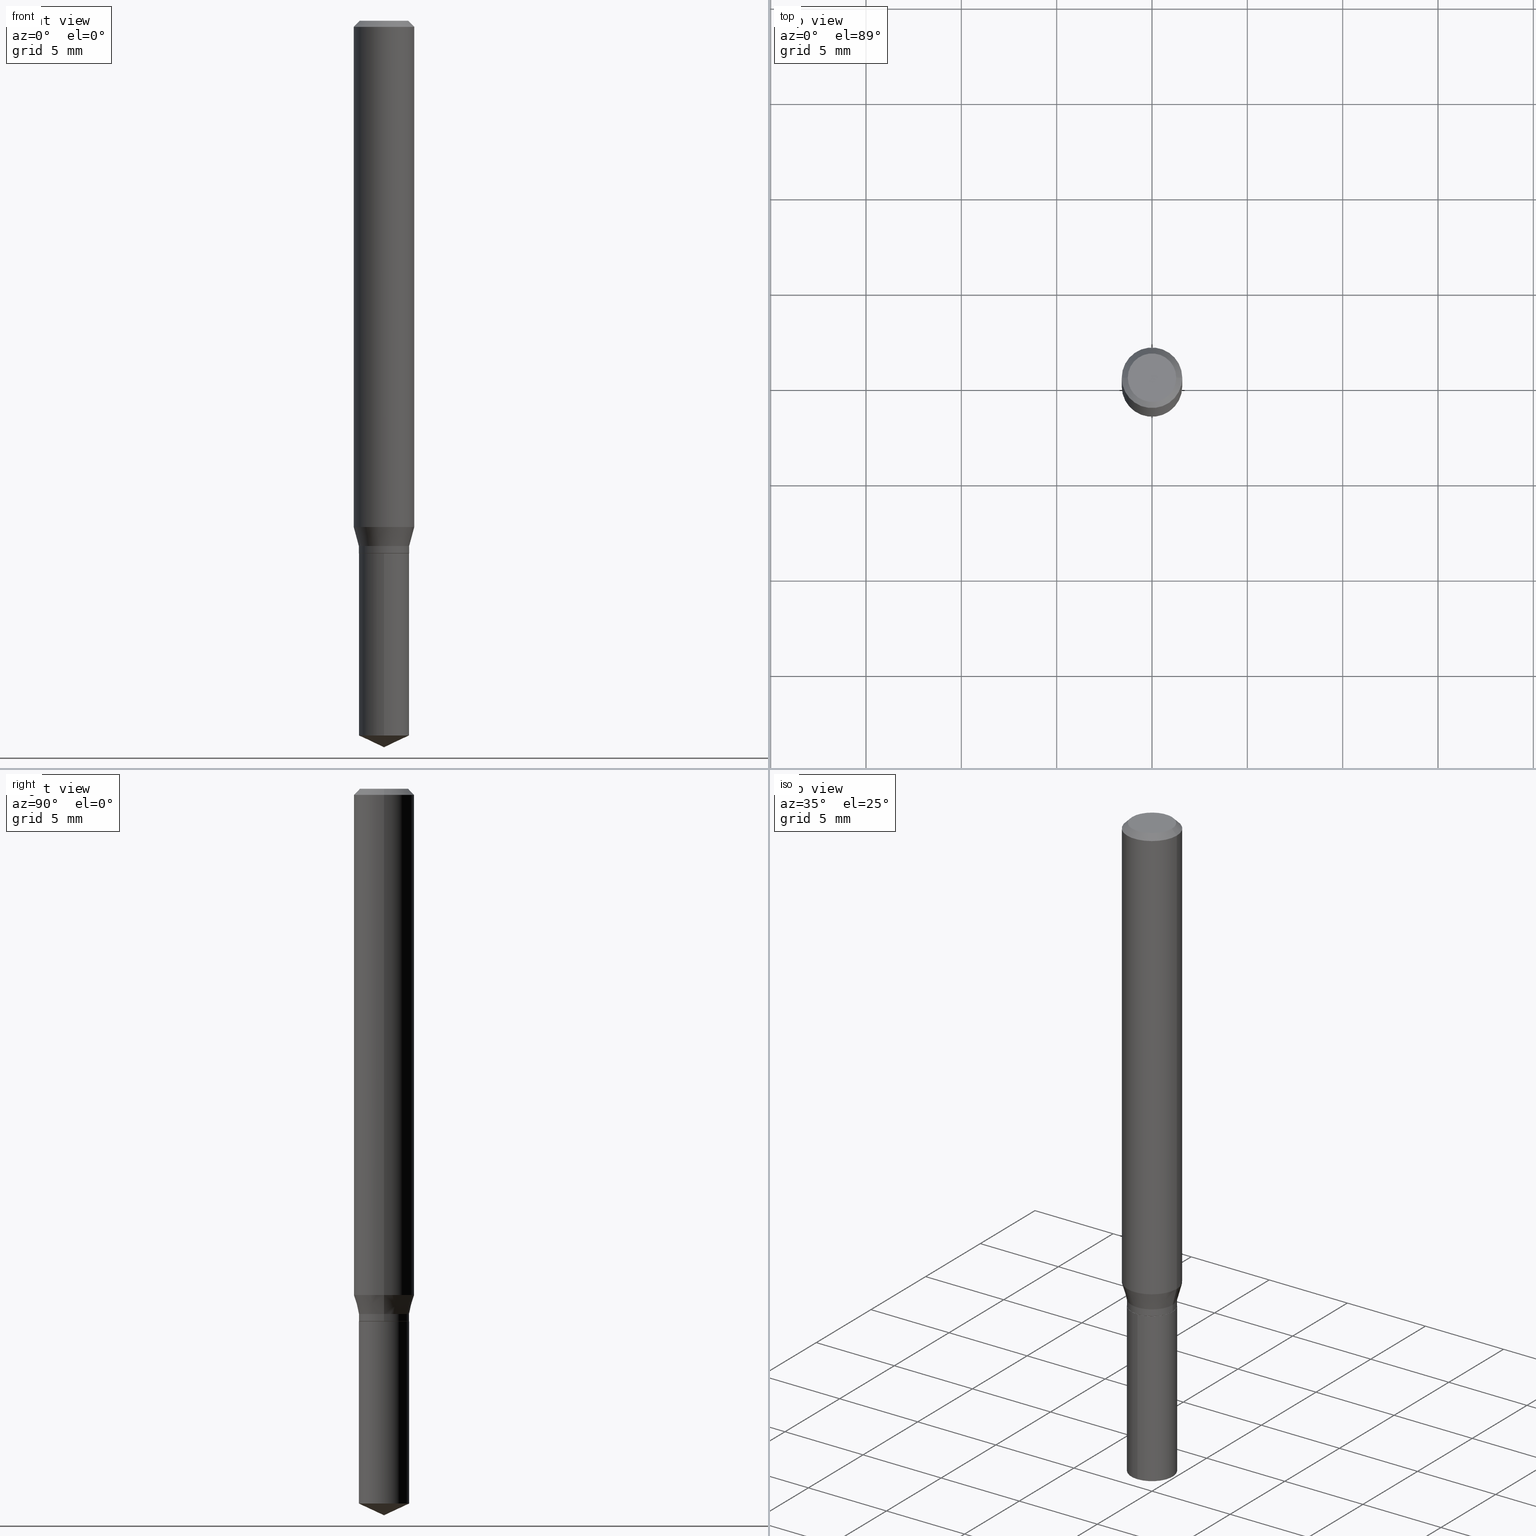
[diagram: canonical four-view strip — front | top / right | iso, engineering-drawing reading convention]
A machine part, canonical four-view strip (front | top / right | iso — engineering-drawing reading convention). The complete STEP part file that produces these views, byte-faithful:
ISO-10303-21;
HEADER;
FILE_DESCRIPTION (( 'STEP AP203' ),
    '1' );
FILE_NAME ('07212.STEP',
    '2024-04-23T20:01:41',
    ( '' ),
    ( '' ),
    'SwSTEP 2.0',
    'SolidWorks 2023',
    '' );
FILE_SCHEMA (( 'CONFIG_CONTROL_DESIGN' ));
ENDSEC;

DATA;
#1 = APPROVAL_STATUS ( 'not_yet_approved' ) ;
#2 = DIRECTION ( 'NONE',  ( 1.000000000000000000, -6.982962677686264344E-15, 0.000000000000000000 ) ) ;
#3 = PERSON_AND_ORGANIZATION ( #219, #182 ) ;
#4 = DIRECTION ( 'NONE',  ( 1.000000000000000000, -6.982962677686269077E-15, 0.000000000000000000 ) ) ;
#5 = FACE_OUTER_BOUND ( 'NONE', #44, .T. ) ;
#6 = DIRECTION ( 'NONE',  ( -2.438088387897960049E-29, 3.491481338843145188E-15, 1.000000000000000000 ) ) ;
#7 = CIRCLE ( 'NONE', #331, 0.06250000000000012490 ) ;
#8 = CIRCLE ( 'NONE', #127, 0.05199999999999999067 ) ;
#9 =( LENGTH_UNIT ( ) NAMED_UNIT ( * ) SI_UNIT ( $, .METRE. ) );
#10 = ADVANCED_FACE ( 'NONE', ( #482 ), #255, .T. ) ;
#11 = VERTEX_POINT ( 'NONE', #259 ) ;
#12 = EDGE_CURVE ( 'NONE', #470, #13, #75, .T. ) ;
#13 = VERTEX_POINT ( 'NONE', #401 ) ;
#14 = VERTEX_POINT ( 'NONE', #444 ) ;
#15 = AXIS2_PLACEMENT_3D ( 'NONE', #301, #413, #374 ) ;
#16 = VERTEX_POINT ( 'NONE', #296 ) ;
#17 = LINE ( 'NONE', #358, #468 ) ;
#18 = ORIENTED_EDGE ( 'NONE', *, *, #153, .T. ) ;
#19 = AXIS2_PLACEMENT_3D ( 'NONE', #71, #151, #110 ) ;
#20 = DIRECTION ( 'NONE',  ( -6.982962677686266711E-15, -1.000000000000000000, 2.626776916984868919E-15 ) ) ;
#21 = CARTESIAN_POINT ( 'NONE',  ( 0.05199999999999999067, -3.631140592396858571E-16, 2.535611923413886108E-30 ) ) ;
#22 = LOCAL_TIME ( 16, 1, 41.00000000000000000, #139 ) ;
#23 = AXIS2_PLACEMENT_3D ( 'NONE', #130, #165, #176 ) ;
#24 = ORIENTED_EDGE ( 'NONE', *, *, #452, .T. ) ;
#25 = PERSON_AND_ORGANIZATION_ROLE ( 'design_owner' ) ;
#26 = LINE ( 'NONE', #245, #370 ) ;
#27 = ORIENTED_EDGE ( 'NONE', *, *, #164, .T. ) ;
#28 = APPROVAL_DATE_TIME ( #404, #116 ) ;
#29 = DIRECTION ( 'NONE',  ( -0.7071067811865451302, 2.468850131082231817E-15, -0.7071067811865499042 ) ) ;
#30 = VECTOR ( 'NONE', #297, 39.37007874015748143 ) ;
#31 = DIRECTION ( 'NONE',  ( 1.000000000000000000, -6.982962677686266711E-15, 0.000000000000000000 ) ) ;
#32 = CONICAL_SURFACE ( 'NONE', #23, 0.06250000000000000000, 0.7853981633974449483 ) ;
#33 = LINE ( 'NONE', #40, #446 ) ;
#34 = FACE_OUTER_BOUND ( 'NONE', #241, .T. ) ;
#35 = CC_DESIGN_PERSON_AND_ORGANIZATION_ASSIGNMENT ( #184, #337, ( #428 ) ) ;
#36 = COORDINATED_UNIVERSAL_TIME_OFFSET ( 5, 0, .BEHIND. ) ;
#37 = CC_DESIGN_APPROVAL ( #360, ( #302 ) ) ;
#38 = DIRECTION ( 'NONE',  ( -2.445399690415121810E-29, 3.491580316559632610E-15, 1.000000000000000000 ) ) ;
#39 = DIRECTION ( 'NONE',  ( 0.7071067811865232589, -2.468850131082003836E-15, 0.7071067811865715536 ) ) ;
#40 = CARTESIAN_POINT ( 'NONE',  ( 3.668099535622682155E-29, -5.237370474839448718E-15, -1.500000000000000222 ) ) ;
#41 = EDGE_CURVE ( 'NONE', #11, #423, #230, .T. ) ;
#42 = CONICAL_SURFACE ( 'NONE', #459, 0.05149999999999999023, 0.7853981633974141952 ) ;
#43 = AXIS2_PLACEMENT_3D ( 'NONE', #371, #229, #78 ) ;
#44 = EDGE_LOOP ( 'NONE', ( #54, #278, #156, #279 ) ) ;
#45 = CARTESIAN_POINT ( 'NONE',  ( 2.690015686803650369E-29, -3.840629472727460101E-15, -1.100000000000000089 ) ) ;
#46 = EDGE_LOOP ( 'NONE', ( #162, #392, #18, #435 ) ) ;
#47 = VERTEX_POINT ( 'NONE', #178 ) ;
#48 = SHAPE_DEFINITION_REPRESENTATION ( #158, #418 ) ;
#49 = ORIENTED_EDGE ( 'NONE', *, *, #282, .T. ) ;
#50 = DIRECTION ( 'NONE',  ( -6.982962677686266711E-15, -1.000000000000000000, 2.626776916984868919E-15 ) ) ;
#51 = ORIENTED_EDGE ( 'NONE', *, *, #372, .T. ) ;
#52 = ADVANCED_FACE ( 'NONE', ( #472 ), #254, .T. ) ;
#53 = CYLINDRICAL_SURFACE ( 'NONE', #389, 0.05199999999999999067 ) ;
#54 = ORIENTED_EDGE ( 'NONE', *, *, #271, .T. ) ;
#55 = CARTESIAN_POINT ( 'NONE',  ( 0.04999999999999999584, -4.077247707424184705E-16, -1.592040838888913461E-18 ) ) ;
#56 = DIRECTION ( 'NONE',  ( -6.982962677686266711E-15, -1.000000000000000000, 2.626776916984868919E-15 ) ) ;
#57 = VECTOR ( 'NONE', #325, 39.37007874015748143 ) ;
#58 = EDGE_CURVE ( 'NONE', #423, #11, #262, .T. ) ;
#59 = DIRECTION ( 'NONE',  ( -2.445399690415121810E-29, 3.491580316559632610E-15, 1.000000000000000000 ) ) ;
#60 = VERTEX_POINT ( 'NONE', #286 ) ;
#61 = DIRECTION ( 'NONE',  ( -2.445468806185136597E-29, 3.491481338843145583E-15, 1.000000000000000000 ) ) ;
#62 = CARTESIAN_POINT ( 'NONE',  ( -9.260740279983036507E-28, 1.322265303911854087E-13, 37.87007874015748143 ) ) ;
#63 = CALENDAR_DATE ( 2024, 23, 4 ) ;
#64 = CIRCLE ( 'NONE', #318, 0.04999999999999999584 ) ;
#65 = LINE ( 'NONE', #220, #242 ) ;
#66 = VERTEX_POINT ( 'NONE', #181 ) ;
#67 = AXIS2_PLACEMENT_3D ( 'NONE', #306, #113, #77 ) ;
#68 = CARTESIAN_POINT ( 'NONE',  ( -3.631140592396589372E-16, -0.05200000000000383482, -1.099999999999999867 ) ) ;
#69 = EDGE_CURVE ( 'NONE', #289, #423, #129, .T. ) ;
#70 = DATE_AND_TIME ( #73, #192 ) ;
#71 = CARTESIAN_POINT ( 'NONE',  ( 3.608879515619396949E-29, -5.152597766036214313E-15, -1.475752001775940458 ) ) ;
#72 = DIRECTION ( 'NONE',  ( 1.000000000000000000, -6.982962677686269077E-15, 0.000000000000000000 ) ) ;
#73 = CALENDAR_DATE ( 2024, 23, 4 ) ;
#74 = EDGE_CURVE ( 'NONE', #16, #13, #359, .T. ) ;
#75 = CIRCLE ( 'NONE', #361, 0.05199999999999999067 ) ;
#76 = EDGE_CURVE ( 'NONE', #293, #47, #281, .T. ) ;
#77 = DIRECTION ( 'NONE',  ( -1.000000000000000000, 6.982962677686265922E-15, -4.876176775795935793E-29 ) ) ;
#78 = DIRECTION ( 'NONE',  ( 1.000000000000000000, -6.982962677686269077E-15, 0.000000000000000000 ) ) ;
#79 = COORDINATED_UNIVERSAL_TIME_OFFSET ( 5, 0, .BEHIND. ) ;
#80 = ORIENTED_EDGE ( 'NONE', *, *, #356, .T. ) ;
#81 = PRODUCT_RELATED_PRODUCT_CATEGORY ( 'detail', '', ( #247 ) ) ;
#82 = ORIENTED_EDGE ( 'NONE', *, *, #74, .T. ) ;
#83 = ORIENTED_EDGE ( 'NONE', *, *, #69, .F. ) ;
#84 = EDGE_LOOP ( 'NONE', ( #200, #421 ) ) ;
#85 = EDGE_CURVE ( 'NONE', #166, #47, #142, .T. ) ;
#86 = DIRECTION ( 'NONE',  ( 1.000000000000000000, -6.982962677686268288E-15, 0.000000000000000000 ) ) ;
#87 = LOCAL_TIME ( 16, 1, 41.00000000000000000, #36 ) ;
#88 = ORIENTED_EDGE ( 'NONE', *, *, #287, .T. ) ;
#89 = CONICAL_SURFACE ( 'NONE', #354, 0.05149999999999999023, 0.7853981633974141952 ) ;
#90 = CARTESIAN_POINT ( 'NONE',  ( 3.893286209682126177E-47, -5.558580879666067980E-33, -1.592040838891559689E-18 ) ) ;
#91 = CARTESIAN_POINT ( 'NONE',  ( 3.056836007731442729E-31, -4.364351673553962300E-17, -0.01250000000000008916 ) ) ;
#92 = DIRECTION ( 'NONE',  ( 1.000000000000000000, -6.982962677686265922E-15, 4.875957971899673662E-29 ) ) ;
#93 = ORIENTED_EDGE ( 'NONE', *, *, #94, .T. ) ;
#94 = EDGE_CURVE ( 'NONE', #16, #14, #429, .T. ) ;
#95 = APPLICATION_CONTEXT ( 'configuration controlled 3d designs of mechanical parts and assemblies' ) ;
#96 = DIRECTION ( 'NONE',  ( 0.000000000000000000, 0.000000000000000000, 1.000000000000000000 ) ) ;
#97 = CARTESIAN_POINT ( 'NONE',  ( 2.690015686803650369E-29, -3.840629472727460101E-15, -1.100000000000000089 ) ) ;
#98 = EDGE_LOOP ( 'NONE', ( #123, #238 ) ) ;
#99 = CC_DESIGN_SECURITY_CLASSIFICATION ( #302, ( #428 ) ) ;
#100 = CONICAL_SURFACE ( 'NONE', #194, 84.42940631927464779, 1.134464013796317339 ) ;
#101 = DIRECTION ( 'NONE',  ( 1.000000000000000000, -6.982962677686268288E-15, 0.000000000000000000 ) ) ;
#102 = ORIENTED_EDGE ( 'NONE', *, *, #74, .F. ) ;
#103 = DIRECTION ( 'NONE',  ( 1.000000000000000000, -6.982962677686268288E-15, 0.000000000000000000 ) ) ;
#104 = ORIENTED_EDGE ( 'NONE', *, *, #486, .T. ) ;
#105 = CIRCLE ( 'NONE', #208, 0.05149999999999999023 ) ;
#106 = ADVANCED_FACE ( 'NONE', ( #34 ), #292, .T. ) ;
#107 = CARTESIAN_POINT ( 'NONE',  ( 0.05149999999999999023, -4.200252050628303247E-15, -1.100000000000000089 ) ) ;
#108 = AXIS2_PLACEMENT_3D ( 'NONE', #268, #6, #447 ) ;
#109 = CYLINDRICAL_SURFACE ( 'NONE', #277, 0.06250000000000006939 ) ;
#110 = DIRECTION ( 'NONE',  ( -6.982962677686266711E-15, -1.000000000000000000, 5.253553833969737838E-15 ) ) ;
#111 = APPROVAL_ROLE ( '' ) ;
#112 = DIRECTION ( 'NONE',  ( -2.445468806185136597E-29, 3.491481338843145583E-15, 1.000000000000000000 ) ) ;
#113 = DIRECTION ( 'NONE',  ( 2.438088387897960049E-29, -3.491481338843145188E-15, -1.000000000000000000 ) ) ;
#114 = VECTOR ( 'NONE', #59, 39.37007874015748143 ) ;
#115 = DIRECTION ( 'NONE',  ( -2.445468806185136597E-29, 3.491481338843145583E-15, 1.000000000000000000 ) ) ;
#116 = APPROVAL ( #1, 'UNSPECIFIED' ) ;
#117 = ORIENTED_EDGE ( 'NONE', *, *, #338, .F. ) ;
#118 = ORIENTED_EDGE ( 'NONE', *, *, #58, .T. ) ;
#119 = APPROVAL_PERSON_ORGANIZATION ( #223, #414, #111 ) ;
#120 = EDGE_LOOP ( 'NONE', ( #420, #88 ) ) ;
#121 = ADVANCED_FACE ( 'NONE', ( #190 ), #450, .T. ) ;
#122 = UNCERTAINTY_MEASURE_WITH_UNIT (LENGTH_MEASURE( 1.000000000000000082E-05 ), #243, 'distance_accuracy_value', 'NONE');
#123 = ORIENTED_EDGE ( 'NONE', *, *, #271, .F. ) ;
#124 = ORIENTED_EDGE ( 'NONE', *, *, #76, .T. ) ;
#125 = CARTESIAN_POINT ( 'NONE',  ( -0.06250000000000012490, -3.205254103613909286E-15, -1.045213466520526380 ) ) ;
#126 = DIRECTION ( 'NONE',  ( 1.000000000000000000, -6.982962677686266711E-15, 0.000000000000000000 ) ) ;
#127 = AXIS2_PLACEMENT_3D ( 'NONE', #391, #248, #50 ) ;
#128 = CARTESIAN_POINT ( 'NONE',  ( 3.056836007731442729E-31, -4.364351673553962300E-17, -0.01250000000000008916 ) ) ;
#129 = LINE ( 'NONE', #170, #275 ) ;
#130 = CARTESIAN_POINT ( 'NONE',  ( 3.056836007731442729E-31, -4.364351673553962300E-17, -0.01250000000000008916 ) ) ;
#131 = DIRECTION ( 'NONE',  ( -6.982962677686266711E-15, -1.000000000000000000, 5.253553833969737838E-15 ) ) ;
#132 =( NAMED_UNIT ( * ) PLANE_ANGLE_UNIT ( ) SI_UNIT ( $, .RADIAN. ) );
#133 = DIRECTION ( 'NONE',  ( -2.445468806185136597E-29, 3.491481338843145583E-15, 1.000000000000000000 ) ) ;
#134 = EDGE_LOOP ( 'NONE', ( #93, #24, #357, #102 ) ) ;
#135 = AXIS2_PLACEMENT_3D ( 'NONE', #431, #362, #20 ) ;
#136 = PERSON_AND_ORGANIZATION_ROLE ( 'creator' ) ;
#137 = DIRECTION ( 'NONE',  ( 0.7071067811865451302, -7.319954787623248157E-15, -0.7071067811865499042 ) ) ;
#138 = DIRECTION ( 'NONE',  ( -2.445468806185136597E-29, 3.491481338843145583E-15, 1.000000000000000000 ) ) ;
#139 = COORDINATED_UNIVERSAL_TIME_OFFSET ( 5, 0, .BEHIND. ) ;
#140 = ADVANCED_FACE ( 'NONE', ( #266 ), #299, .F. ) ;
#141 = DIRECTION ( 'NONE',  ( 6.982962677686265922E-15, 1.000000000000000000, -3.491580316559632610E-15 ) ) ;
#142 = LINE ( 'NONE', #451, #474 ) ;
#143 = PERSON_AND_ORGANIZATION_ROLE ( 'creator' ) ;
#144 = DIRECTION ( 'NONE',  ( -2.445468806185136597E-29, 3.491481338843145583E-15, 1.000000000000000000 ) ) ;
#145 = DIRECTION ( 'NONE',  ( 6.439704144417032720E-15, 0.9063077870366527122, 0.4226182617406934461 ) ) ;
#146 = DATE_AND_TIME ( #295, #87 ) ;
#147 = CIRCLE ( 'NONE', #313, 0.05199999999999999067 ) ;
#148 = DIRECTION ( 'NONE',  ( 1.000000000000000000, -6.982962677686264344E-15, 0.000000000000000000 ) ) ;
#149 = VECTOR ( 'NONE', #38, 39.37007874015748143 ) ;
#150 = PERSON_AND_ORGANIZATION ( #219, #182 ) ;
#151 = DIRECTION ( 'NONE',  ( -2.445399690415121530E-29, 3.491580316559632610E-15, 1.000000000000000000 ) ) ;
#152 = DIRECTION ( 'NONE',  ( 2.445399690415121250E-29, -3.491580316559632610E-15, -1.000000000000000000 ) ) ;
#153 = EDGE_CURVE ( 'NONE', #66, #16, #227, .T. ) ;
#154 = AXIS2_PLACEMENT_3D ( 'NONE', #90, #471, #92 ) ;
#155 = ORIENTED_EDGE ( 'NONE', *, *, #69, .T. ) ;
#156 = ORIENTED_EDGE ( 'NONE', *, *, #94, .F. ) ;
#157 = ADVANCED_FACE ( 'NONE', ( #195 ), #460, .F. ) ;
#158 = PRODUCT_DEFINITION_SHAPE ( 'NONE', 'NONE',  #168 ) ;
#159 = ORIENTED_EDGE ( 'NONE', *, *, #395, .T. ) ;
#160 = AXIS2_PLACEMENT_3D ( 'NONE', #264, #377, #72 ) ;
#161 = AXIS2_PLACEMENT_3D ( 'NONE', #484, #133, #480 ) ;
#162 = ORIENTED_EDGE ( 'NONE', *, *, #441, .F. ) ;
#163 = EDGE_LOOP ( 'NONE', ( #284, #315, #310, #469 ) ) ;
#164 = EDGE_CURVE ( 'NONE', #13, #470, #147, .T. ) ;
#165 = DIRECTION ( 'NONE',  ( 2.445468806185136597E-29, -3.491481338843145583E-15, -1.000000000000000000 ) ) ;
#166 = VERTEX_POINT ( 'NONE', #270 ) ;
#167 = AXIS2_PLACEMENT_3D ( 'NONE', #231, #112, #378 ) ;
#168 = PRODUCT_DEFINITION ( 'UNKNOWN', '', #428, #396 ) ;
#169 = DIRECTION ( 'NONE',  ( -6.982962677686267499E-15, -1.000000000000000000, 3.520397390770440854E-15 ) ) ;
#170 = CARTESIAN_POINT ( 'NONE',  ( -0.06250000000000006939, 4.440892098500631092E-16, -3.074334431409319267E-30 ) ) ;
#171 = VECTOR ( 'NONE', #173, 39.37007874015748143 ) ;
#172 = AXIS2_PLACEMENT_3D ( 'NONE', #128, #250, #253 ) ;
#173 = DIRECTION ( 'NONE',  ( -0.2588190451025215721, 5.211531920934551831E-15, 0.9659258262890679791 ) ) ;
#174 = ORIENTED_EDGE ( 'NONE', *, *, #12, .T. ) ;
#175 = CALENDAR_DATE ( 2024, 23, 4 ) ;
#176 = DIRECTION ( 'NONE',  ( -1.000000000000000000, 6.982962677686266711E-15, 0.000000000000000000 ) ) ;
#177 = MANIFOLD_SOLID_BREP ( 'Body-Move/Copy2[1]', #323 ) ;
#178 = CARTESIAN_POINT ( 'NONE',  ( 3.694822225952880222E-16, 0.05199999999999482120, -1.475752001775940681 ) ) ;
#179 = CIRCLE ( 'NONE', #458, 0.06250000000000012490 ) ;
#180 = DATE_TIME_ROLE ( 'creation_date' ) ;
#181 = CARTESIAN_POINT ( 'NONE',  ( 0.05149999999999999023, -4.200252050628303247E-15, -1.100000000000000089 ) ) ;
#182 = ORGANIZATION ( 'UNSPECIFIED', 'UNSPECIFIED', '' ) ;
#183 = AXIS2_PLACEMENT_3D ( 'NONE', #213, #61, #101 ) ;
#184 = PERSON_AND_ORGANIZATION ( #219, #182 ) ;
#185 = LINE ( 'NONE', #415, #30 ) ;
#186 = MANIFOLD_SOLID_BREP ( 'Body-Move/Copy2[2]', #483 ) ;
#187 = APPROVAL_STATUS ( 'not_yet_approved' ) ;
#188 = ADVANCED_FACE ( 'NONE', ( #419 ), #89, .T. ) ;
#189 = CARTESIAN_POINT ( 'NONE',  ( 0.06250000000000012490, -4.085778480819365543E-15, -1.045213466520526380 ) ) ;
#190 = FACE_OUTER_BOUND ( 'NONE', #203, .T. ) ;
#191 = CARTESIAN_POINT ( 'NONE',  ( 2.556036928180580217E-29, -3.649343313463973085E-15, -1.045213466520526380 ) ) ;
#192 = LOCAL_TIME ( 16, 1, 41.00000000000000000, #193 ) ;
#193 = COORDINATED_UNIVERSAL_TIME_OFFSET ( 5, 0, .BEHIND. ) ;
#194 = AXIS2_PLACEMENT_3D ( 'NONE', #436, #324, #169 ) ;
#195 = FACE_OUTER_BOUND ( 'NONE', #120, .T. ) ;
#196 = LINE ( 'NONE', #228, #149 ) ;
#197 = CARTESIAN_POINT ( 'NONE',  ( 2.651866373427162025E-29, -3.786162363841507612E-15, -1.084400000000000031 ) ) ;
#198 = EDGE_CURVE ( 'NONE', #355, #479, #400, .T. ) ;
#199 = ORIENTED_EDGE ( 'NONE', *, *, #76, .F. ) ;
#200 = ORIENTED_EDGE ( 'NONE', *, *, #290, .T. ) ;
#201 = CC_DESIGN_PERSON_AND_ORGANIZATION_ASSIGNMENT ( #212, #25, ( #247 ) ) ;
#202 = EDGE_LOOP ( 'NONE', ( #328, #433, #82, #221 ) ) ;
#203 = EDGE_LOOP ( 'NONE', ( #27, #236, #466, #314 ) ) ;
#204 = ORIENTED_EDGE ( 'NONE', *, *, #41, .F. ) ;
#205 = ADVANCED_FACE ( 'NONE', ( #434 ), #100, .T. ) ;
#206 = CARTESIAN_POINT ( 'NONE',  ( -3.631140592396496188E-16, -0.05200000000000513933, -1.475752001775940014 ) ) ;
#207 = DIRECTION ( 'NONE',  ( -2.445468806185136877E-29, 3.491481338843145188E-15, 1.000000000000000000 ) ) ;
#208 = AXIS2_PLACEMENT_3D ( 'NONE', #45, #233, #348 ) ;
#209 = FACE_OUTER_BOUND ( 'NONE', #84, .T. ) ;
#210 = DIRECTION ( 'NONE',  ( -2.445468806185136597E-29, 3.491481338843145583E-15, 1.000000000000000000 ) ) ;
#211 = AXIS2_PLACEMENT_3D ( 'NONE', #91, #406, #126 ) ;
#212 = PERSON_AND_ORGANIZATION ( #219, #182 ) ;
#213 = CARTESIAN_POINT ( 'NONE',  ( 2.690015686803650369E-29, -3.840629472727460101E-15, -1.100000000000000089 ) ) ;
#214 = EDGE_CURVE ( 'NONE', #47, #355, #366, .T. ) ;
#215 = ORIENTED_EDGE ( 'NONE', *, *, #261, .F. ) ;
#216 = FACE_OUTER_BOUND ( 'NONE', #163, .T. ) ;
#217 = DIRECTION ( 'NONE',  ( -2.445399690415121530E-29, 3.491580316559632610E-15, 1.000000000000000000 ) ) ;
#218 = AXIS2_PLACEMENT_3D ( 'NONE', #405, #305, #4 ) ;
#219 = PERSON ( 'UNSPECIFIED', 'UNSPECIFIED', 'UNSPECIFIED', ('UNSPECIFIED'), ('UNSPECIFIED'), ('UNSPECIFIED') ) ;
#220 = CARTESIAN_POINT ( 'NONE',  ( -0.05149999999999999023, -3.474699963811008575E-15, -1.100000000000000089 ) ) ;
#221 = ORIENTED_EDGE ( 'NONE', *, *, #12, .F. ) ;
#222 = CC_DESIGN_APPROVAL ( #414, ( #428 ) ) ;
#223 = PERSON_AND_ORGANIZATION ( #219, #182 ) ;
#224 = CARTESIAN_POINT ( 'NONE',  ( 0.000000000000000000, 0.000000000000000000, 0.000000000000000000 ) ) ;
#225 = CC_DESIGN_DATE_AND_TIME_ASSIGNMENT ( #146, #180, ( #168 ) ) ;
#226 = DATE_TIME_ROLE ( 'classification_date' ) ;
#227 = LINE ( 'NONE', #107, #335 ) ;
#228 = CARTESIAN_POINT ( 'NONE',  ( -3.631140592396589372E-16, -0.05200000000000383482, -1.099999999999999867 ) ) ;
#229 = DIRECTION ( 'NONE',  ( -2.445468806185136597E-29, 3.491481338843145583E-15, 1.000000000000000000 ) ) ;
#230 = CIRCLE ( 'NONE', #269, 0.06250000000000000000 ) ;
#231 = CARTESIAN_POINT ( 'NONE',  ( 0.000000000000000000, 0.000000000000000000, 0.000000000000000000 ) ) ;
#232 = EDGE_CURVE ( 'NONE', #276, #423, #17, .T. ) ;
#233 = DIRECTION ( 'NONE',  ( -2.445468806185136597E-29, 3.491481338843145583E-15, 1.000000000000000000 ) ) ;
#234 = ORIENTED_EDGE ( 'NONE', *, *, #85, .T. ) ;
#235 = CIRCLE ( 'NONE', #154, 0.04999999999999999584 ) ;
#236 = ORIENTED_EDGE ( 'NONE', *, *, #261, .T. ) ;
#237 = ADVANCED_FACE ( 'NONE', ( #285 ), #53, .T. ) ;
#238 = ORIENTED_EDGE ( 'NONE', *, *, #490, .F. ) ;
#239 = APPROVAL_DATE_TIME ( #438, #360 ) ;
#240 = LINE ( 'NONE', #308, #309 ) ;
#241 = EDGE_LOOP ( 'NONE', ( #215, #174, #104, #427 ) ) ;
#242 = VECTOR ( 'NONE', #265, 39.37007874015748854 ) ;
#243 =( CONVERSION_BASED_UNIT ( 'INCH', #475 ) LENGTH_UNIT ( ) NAMED_UNIT ( #442 ) );
#244 = APPROVAL_PERSON_ORGANIZATION ( #411, #116, #340 ) ;
#245 = CARTESIAN_POINT ( 'NONE',  ( 0.06250000000000006939, -4.364351673553921624E-16, 3.047610484872463374E-30 ) ) ;
#246 = ORIENTED_EDGE ( 'NONE', *, *, #303, .F. ) ;
#247 = PRODUCT ( '07212', '07212', '', ( #280 ) ) ;
#248 = DIRECTION ( 'NONE',  ( -2.445399690415121530E-29, 3.491580316559632610E-15, 1.000000000000000000 ) ) ;
#249 = CARTESIAN_POINT ( 'NONE',  ( 2.651866373427162025E-29, -3.786162363841507612E-15, -1.084400000000000031 ) ) ;
#250 = DIRECTION ( 'NONE',  ( 2.445468806185136597E-29, -3.491481338843145583E-15, -1.000000000000000000 ) ) ;
#251 = DIRECTION ( 'NONE',  ( -6.982962677686267499E-15, -1.000000000000000000, 3.520397390770440854E-15 ) ) ;
#252 = LOCAL_TIME ( 16, 1, 41.00000000000000000, #79 ) ;
#253 = DIRECTION ( 'NONE',  ( -1.000000000000000000, 6.982962677686266711E-15, 0.000000000000000000 ) ) ;
#254 = CONICAL_SURFACE ( 'NONE', #422, 84.42940631927464779, 1.134464013796317339 ) ;
#255 = CYLINDRICAL_SURFACE ( 'NONE', #409, 0.05199999999999999067 ) ;
#256 = CARTESIAN_POINT ( 'NONE',  ( 2.690015686803650369E-29, -3.840629472727460101E-15, -1.100000000000000089 ) ) ;
#257 = DIRECTION ( 'NONE',  ( -2.445399690415121530E-29, 3.491580316559632610E-15, 1.000000000000000000 ) ) ;
#258 = CARTESIAN_POINT ( 'NONE',  ( -0.06250000000000000000, -1.402404205249692524E-15, -0.01250000000000008916 ) ) ;
#259 = CARTESIAN_POINT ( 'NONE',  ( 0.06250000000000000000, -4.800786840909313294E-16, -0.01250000000000008916 ) ) ;
#260 = DIRECTION ( 'NONE',  ( -2.445468806185136597E-29, 3.491481338843145583E-15, 1.000000000000000000 ) ) ;
#261 = EDGE_CURVE ( 'NONE', #470, #289, #393, .T. ) ;
#262 = CIRCLE ( 'NONE', #211, 0.06250000000000000000 ) ;
#263 = CARTESIAN_POINT ( 'NONE',  ( 0.000000000000000000, 0.000000000000000000, 0.000000000000000000 ) ) ;
#264 = CARTESIAN_POINT ( 'NONE',  ( 2.651866373427162025E-29, -3.786162363841507612E-15, -1.084400000000000031 ) ) ;
#265 = DIRECTION ( 'NONE',  ( -0.7071067811865232589, 7.493145998870265808E-15, 0.7071067811865715536 ) ) ;
#266 = FACE_OUTER_BOUND ( 'NONE', #98, .T. ) ;
#267 = CYLINDRICAL_SURFACE ( 'NONE', #481, 0.05199999999999999067 ) ;
#268 = CARTESIAN_POINT ( 'NONE',  ( 2.690015686803650369E-29, -3.840629472727460101E-15, -1.100000000000000089 ) ) ;
#269 = AXIS2_PLACEMENT_3D ( 'NONE', #403, #138, #31 ) ;
#270 = CARTESIAN_POINT ( 'NONE',  ( 3.668099535622682715E-29, -5.237370474839449507E-15, -1.500000000000000222 ) ) ;
#271 = EDGE_CURVE ( 'NONE', #66, #60, #417, .T. ) ;
#272 = ORIENTED_EDGE ( 'NONE', *, *, #58, .F. ) ;
#273 = ORIENTED_EDGE ( 'NONE', *, *, #338, .T. ) ;
#274 = ADVANCED_FACE ( 'NONE', ( #364 ), #32, .T. ) ;
#275 = VECTOR ( 'NONE', #207, 39.37007874015748143 ) ;
#276 = VERTEX_POINT ( 'NONE', #326 ) ;
#277 = AXIS2_PLACEMENT_3D ( 'NONE', #263, #487, #489 ) ;
#278 = ORIENTED_EDGE ( 'NONE', *, *, #441, .T. ) ;
#279 = ORIENTED_EDGE ( 'NONE', *, *, #153, .F. ) ;
#280 = MECHANICAL_CONTEXT ( 'NONE', #95, 'mechanical' ) ;
#281 = CIRCLE ( 'NONE', #461, 0.05199999999999999067 ) ;
#282 = EDGE_CURVE ( 'NONE', #437, #11, #26, .T. ) ;
#283 = DIRECTION ( 'NONE',  ( -2.445399690415121530E-29, 3.491580316559632610E-15, 1.000000000000000000 ) ) ;
#284 = ORIENTED_EDGE ( 'NONE', *, *, #287, .F. ) ;
#285 = FACE_OUTER_BOUND ( 'NONE', #440, .T. ) ;
#286 = CARTESIAN_POINT ( 'NONE',  ( -0.05149999999999999023, -3.472050736636897374E-15, -1.100000000000000089 ) ) ;
#287 = EDGE_CURVE ( 'NONE', #311, #276, #235, .T. ) ;
#288 = PLANE ( 'NONE',  #294 ) ;
#289 = VERTEX_POINT ( 'NONE', #125 ) ;
#290 = EDGE_CURVE ( 'NONE', #479, #355, #8, .T. ) ;
#291 = CYLINDRICAL_SURFACE ( 'NONE', #161, 0.05199999999999999067 ) ;
#292 = CONICAL_SURFACE ( 'NONE', #160, 0.05199999999999999067, 0.2617993877991502960 ) ;
#293 = VERTEX_POINT ( 'NONE', #206 ) ;
#294 = AXIS2_PLACEMENT_3D ( 'NONE', #256, #152, #141 ) ;
#295 = CALENDAR_DATE ( 2024, 23, 4 ) ;
#296 = CARTESIAN_POINT ( 'NONE',  ( 0.05199999999999999067, -4.201997791297723962E-15, -1.099499999999999922 ) ) ;
#297 = DIRECTION ( 'NONE',  ( -2.445468806185136877E-29, 3.491481338843145188E-15, 1.000000000000000000 ) ) ;
#298 = ADVANCED_FACE ( 'NONE', ( #330 ), #291, .T. ) ;
#299 = PLANE ( 'NONE',  #108 ) ;
#300 = DIRECTION ( 'NONE',  ( 1.000000000000000000, -6.982962677686265922E-15, 4.875957971899673662E-29 ) ) ;
#301 = CARTESIAN_POINT ( 'NONE',  ( 2.651866373427162025E-29, -3.786162363841507612E-15, -1.084400000000000031 ) ) ;
#302 = SECURITY_CLASSIFICATION ( '', '', #333 ) ;
#303 = EDGE_CURVE ( 'NONE', #311, #11, #476, .T. ) ;
#304 = APPROVAL_STATUS ( 'not_yet_approved' ) ;
#305 = DIRECTION ( 'NONE',  ( -2.445468806185136597E-29, 3.491481338843145583E-15, 1.000000000000000000 ) ) ;
#306 = CARTESIAN_POINT ( 'NONE',  ( 1.946643104841063088E-47, -2.779290439833033990E-33, -7.960204194457798443E-19 ) ) ;
#307 = ADVANCED_FACE ( 'NONE', ( #216 ), #349, .T. ) ;
#308 = CARTESIAN_POINT ( 'NONE',  ( 0.05199999999999999067, -4.149276423081192976E-15, -1.084400000000000031 ) ) ;
#309 = VECTOR ( 'NONE', #382, 39.37007874015748143 ) ;
#310 = ORIENTED_EDGE ( 'NONE', *, *, #41, .T. ) ;
#311 = VERTEX_POINT ( 'NONE', #55 ) ;
#312 = EDGE_LOOP ( 'NONE', ( #124, #351, #464, #117 ) ) ;
#313 = AXIS2_PLACEMENT_3D ( 'NONE', #197, #115, #346 ) ;
#314 = ORIENTED_EDGE ( 'NONE', *, *, #486, .F. ) ;
#315 = ORIENTED_EDGE ( 'NONE', *, *, #303, .T. ) ;
#316 = ADVANCED_FACE ( 'NONE', ( #209 ), #288, .F. ) ;
#317 = DIRECTION ( 'NONE',  ( 1.000000000000000000, 0.000000000000000000, 0.000000000000000000 ) ) ;
#318 = AXIS2_PLACEMENT_3D ( 'NONE', #445, #260, #300 ) ;
#319 = DIRECTION ( 'NONE',  ( -6.982962677686266711E-15, -1.000000000000000000, 2.626776916984868919E-15 ) ) ;
#320 = EDGE_LOOP ( 'NONE', ( #485, #234, #199 ) ) ;
#321 = CARTESIAN_POINT ( 'NONE',  ( 0.000000000000000000, 0.000000000000000000, 0.000000000000000000 ) ) ;
#322 = CC_DESIGN_APPROVAL ( #116, ( #168 ) ) ;
#323 = CLOSED_SHELL ( 'NONE', ( #10, #205, #52, #237, #316 ) ) ;
#324 = DIRECTION ( 'NONE',  ( -2.445399690415121530E-29, 3.491580316559632610E-15, 1.000000000000000000 ) ) ;
#325 = DIRECTION ( 'NONE',  ( -2.445468806185136877E-29, 3.491481338843145188E-15, 1.000000000000000000 ) ) ;
#326 = CARTESIAN_POINT ( 'NONE',  ( -0.04999999999999999584, 3.709698922520826725E-16, -1.592040838894077649E-18 ) ) ;
#327 = ADVANCED_FACE ( 'NONE', ( #457 ), #109, .T. ) ;
#328 = ORIENTED_EDGE ( 'NONE', *, *, #452, .F. ) ;
#329 = APPLICATION_PROTOCOL_DEFINITION ( 'international standard', 'config_control_design', 1994, #456 ) ;
#330 = FACE_OUTER_BOUND ( 'NONE', #134, .T. ) ;
#331 = AXIS2_PLACEMENT_3D ( 'NONE', #449, #144, #2 ) ;
#332 = ORIENTED_EDGE ( 'NONE', *, *, #214, .F. ) ;
#333 = SECURITY_CLASSIFICATION_LEVEL ( 'unclassified' ) ;
#334 = DIRECTION ( 'NONE',  ( -2.445468806185136877E-29, 3.491481338843145188E-15, 1.000000000000000000 ) ) ;
#335 = VECTOR ( 'NONE', #39, 39.37007874015748854 ) ;
#336 = ORIENTED_EDGE ( 'NONE', *, *, #462, .F. ) ;
#337 = PERSON_AND_ORGANIZATION_ROLE ( 'design_supplier' ) ;
#338 = EDGE_CURVE ( 'NONE', #293, #479, #196, .T. ) ;
#339 = FACE_OUTER_BOUND ( 'NONE', #394, .T. ) ;
#340 = APPROVAL_ROLE ( '' ) ;
#341 = DIRECTION ( 'NONE',  ( -2.445468806185136597E-29, 3.491481338843145583E-15, 1.000000000000000000 ) ) ;
#342 = DATE_AND_TIME ( #63, #381 ) ;
#343 = FACE_OUTER_BOUND ( 'NONE', #202, .T. ) ;
#344 = ADVANCED_FACE ( 'NONE', ( #343 ), #267, .T. ) ;
#345 = DIRECTION ( 'NONE',  ( 1.000000000000000000, -6.982962677686267499E-15, 4.876176775795935793E-29 ) ) ;
#346 = DIRECTION ( 'NONE',  ( 1.000000000000000000, -6.982962677686269077E-15, 0.000000000000000000 ) ) ;
#347 = EDGE_CURVE ( 'NONE', #14, #16, #426, .T. ) ;
#348 = DIRECTION ( 'NONE',  ( 1.000000000000000000, -6.982962677686268288E-15, 0.000000000000000000 ) ) ;
#349 = CONICAL_SURFACE ( 'NONE', #172, 0.06250000000000000000, 0.7853981633974449483 ) ;
#350 = CARTESIAN_POINT ( 'NONE',  ( 2.690015686803650369E-29, -3.840629472727460101E-15, -1.100000000000000089 ) ) ;
#351 = ORIENTED_EDGE ( 'NONE', *, *, #214, .T. ) ;
#352 = ORIENTED_EDGE ( 'NONE', *, *, #232, .T. ) ;
#353 = ORIENTED_EDGE ( 'NONE', *, *, #198, .F. ) ;
#354 = AXIS2_PLACEMENT_3D ( 'NONE', #350, #402, #86 ) ;
#355 = VERTEX_POINT ( 'NONE', #412 ) ;
#356 = EDGE_CURVE ( 'NONE', #289, #437, #7, .T. ) ;
#357 = ORIENTED_EDGE ( 'NONE', *, *, #164, .F. ) ;
#358 = CARTESIAN_POINT ( 'NONE',  ( -0.06250000000000000000, 3.927916506198520587E-16, -0.01250000000000008916 ) ) ;
#359 = LINE ( 'NONE', #21, #57 ) ;
#360 = APPROVAL ( #304, 'UNSPECIFIED' ) ;
#361 = AXIS2_PLACEMENT_3D ( 'NONE', #249, #210, #367 ) ;
#362 = DIRECTION ( 'NONE',  ( -2.445399690415121530E-29, 3.491580316559632610E-15, 1.000000000000000000 ) ) ;
#363 = ORIENTED_EDGE ( 'NONE', *, *, #282, .F. ) ;
#364 = FACE_OUTER_BOUND ( 'NONE', #383, .T. ) ;
#365 = CARTESIAN_POINT ( 'NONE',  ( 2.690015686803650369E-29, -3.840629472727460101E-15, -1.100000000000000089 ) ) ;
#366 = LINE ( 'NONE', #397, #114 ) ;
#367 = DIRECTION ( 'NONE',  ( 1.000000000000000000, -6.982962677686269077E-15, 0.000000000000000000 ) ) ;
#368 = PERSON_AND_ORGANIZATION ( #219, #182 ) ;
#369 = CARTESIAN_POINT ( 'NONE',  ( 2.690015686803650369E-29, -3.840629472727460101E-15, -1.100000000000000089 ) ) ;
#370 = VECTOR ( 'NONE', #334, 39.37007874015748143 ) ;
#371 = CARTESIAN_POINT ( 'NONE',  ( 2.688792952400557567E-29, -3.838883732058038598E-15, -1.099499999999999922 ) ) ;
#372 = EDGE_CURVE ( 'NONE', #47, #293, #386, .T. ) ;
#373 = CYLINDRICAL_SURFACE ( 'NONE', #167, 0.06250000000000006939 ) ;
#374 = DIRECTION ( 'NONE',  ( 1.000000000000000000, -6.982962677686269077E-15, 0.000000000000000000 ) ) ;
#375 = APPROVAL_DATE_TIME ( #342, #414 ) ;
#376 = CC_DESIGN_DATE_AND_TIME_ASSIGNMENT ( #70, #226, ( #302 ) ) ;
#377 = DIRECTION ( 'NONE',  ( -2.445468806185136597E-29, 3.491481338843145583E-15, 1.000000000000000000 ) ) ;
#378 = DIRECTION ( 'NONE',  ( 1.000000000000000000, -6.982962677686266711E-15, 4.876176775795935793E-29 ) ) ;
#379 = ADVANCED_FACE ( 'NONE', ( #339 ), #373, .T. ) ;
#380 = EDGE_LOOP ( 'NONE', ( #159, #155, #204, #363 ) ) ;
#381 = LOCAL_TIME ( 16, 1, 41.00000000000000000, #453 ) ;
#382 = DIRECTION ( 'NONE',  ( 0.2588190451025215721, 1.565188264969619995E-15, 0.9659258262890679791 ) ) ;
#383 = EDGE_LOOP ( 'NONE', ( #246, #336, #352, #118 ) ) ;
#384 = EDGE_CURVE ( 'NONE', #166, #293, #33, .T. ) ;
#385 = ORIENTED_EDGE ( 'NONE', *, *, #85, .F. ) ;
#386 = CIRCLE ( 'NONE', #19, 0.05199999999999999067 ) ;
#387 = EDGE_LOOP ( 'NONE', ( #385, #463, #425 ) ) ;
#388 =( GEOMETRIC_REPRESENTATION_CONTEXT ( 3 ) GLOBAL_UNCERTAINTY_ASSIGNED_CONTEXT ( ( #122 ) ) GLOBAL_UNIT_ASSIGNED_CONTEXT ( ( #243, #132, #390 ) ) REPRESENTATION_CONTEXT ( 'NONE', 'WORKASPACE' ) );
#389 = AXIS2_PLACEMENT_3D ( 'NONE', #97, #283, #319 ) ;
#390 =( NAMED_UNIT ( * ) SI_UNIT ( $, .STERADIAN. ) SOLID_ANGLE_UNIT ( ) );
#391 = CARTESIAN_POINT ( 'NONE',  ( 2.690015686803650369E-29, -3.840629472727460101E-15, -1.100000000000000089 ) ) ;
#392 = ORIENTED_EDGE ( 'NONE', *, *, #490, .T. ) ;
#393 = LINE ( 'NONE', #439, #171 ) ;
#394 = EDGE_LOOP ( 'NONE', ( #83, #80, #49, #272 ) ) ;
#395 = EDGE_CURVE ( 'NONE', #437, #289, #179, .T. ) ;
#396 = DESIGN_CONTEXT ( 'detailed design', #456, 'design' ) ;
#397 = CARTESIAN_POINT ( 'NONE',  ( 3.694822225952788517E-16, 0.05199999999999615347, -1.100000000000000089 ) ) ;
#398 = DIRECTION ( 'NONE',  ( -2.445399690415121530E-29, 3.491580316559632610E-15, 1.000000000000000000 ) ) ;
#399 = APPLICATION_PROTOCOL_DEFINITION ( 'international standard', 'config_control_design', 1994, #95 ) ;
#400 = CIRCLE ( 'NONE', #135, 0.05199999999999999067 ) ;
#401 = CARTESIAN_POINT ( 'NONE',  ( 0.05199999999999999067, -4.149276423081192976E-15, -1.084400000000000031 ) ) ;
#402 = DIRECTION ( 'NONE',  ( -2.445468806185136597E-29, 3.491481338843145583E-15, 1.000000000000000000 ) ) ;
#403 = CARTESIAN_POINT ( 'NONE',  ( 3.056836007731442729E-31, -4.364351673553962300E-17, -0.01250000000000008916 ) ) ;
#404 = DATE_AND_TIME ( #407, #22 ) ;
#405 = CARTESIAN_POINT ( 'NONE',  ( 2.688792952400557567E-29, -3.838883732058038598E-15, -1.099499999999999922 ) ) ;
#406 = DIRECTION ( 'NONE',  ( -2.445468806185136597E-29, 3.491481338843145583E-15, 1.000000000000000000 ) ) ;
#407 = CALENDAR_DATE ( 2024, 23, 4 ) ;
#408 = CARTESIAN_POINT ( 'NONE',  ( -0.05199999999999999067, -3.443040825354520286E-15, -1.084400000000000031 ) ) ;
#409 = AXIS2_PLACEMENT_3D ( 'NONE', #365, #257, #56 ) ;
#410 = ADVANCED_FACE ( 'NONE', ( #5 ), #42, .T. ) ;
#411 = PERSON_AND_ORGANIZATION ( #219, #182 ) ;
#412 = CARTESIAN_POINT ( 'NONE',  ( 3.694822225952881208E-16, 0.05199999999999615347, -1.100000000000000089 ) ) ;
#413 = DIRECTION ( 'NONE',  ( -2.445468806185136597E-29, 3.491481338843145583E-15, 1.000000000000000000 ) ) ;
#414 = APPROVAL ( #187, 'UNSPECIFIED' ) ;
#415 = CARTESIAN_POINT ( 'NONE',  ( -0.05199999999999999067, 3.694822225952520304E-16, -2.557846246932550771E-30 ) ) ;
#416 = DIRECTION ( 'NONE',  ( -2.445468806185136597E-29, 3.491481338843145583E-15, 1.000000000000000000 ) ) ;
#417 = CIRCLE ( 'NONE', #183, 0.05149999999999999023 ) ;
#418 = ADVANCED_BREP_SHAPE_REPRESENTATION ( '07212', ( #177, #186, #473 ), #388 ) ;
#419 = FACE_OUTER_BOUND ( 'NONE', #46, .T. ) ;
#420 = ORIENTED_EDGE ( 'NONE', *, *, #462, .T. ) ;
#421 = ORIENTED_EDGE ( 'NONE', *, *, #198, .T. ) ;
#422 = AXIS2_PLACEMENT_3D ( 'NONE', #62, #217, #251 ) ;
#423 = VERTEX_POINT ( 'NONE', #258 ) ;
#424 = CC_DESIGN_PERSON_AND_ORGANIZATION_ASSIGNMENT ( #368, #143, ( #428 ) ) ;
#425 = ORIENTED_EDGE ( 'NONE', *, *, #372, .F. ) ;
#426 = CIRCLE ( 'NONE', #218, 0.05199999999999999067 ) ;
#427 = ORIENTED_EDGE ( 'NONE', *, *, #356, .F. ) ;
#428 = PRODUCT_DEFINITION_FORMATION_WITH_SPECIFIED_SOURCE ( 'ANY', '', #247, .NOT_KNOWN. ) ;
#429 = CIRCLE ( 'NONE', #43, 0.05199999999999999067 ) ;
#430 = VECTOR ( 'NONE', #137, 39.37007874015748143 ) ;
#431 = CARTESIAN_POINT ( 'NONE',  ( 2.690015686803650369E-29, -3.840629472727460101E-15, -1.100000000000000089 ) ) ;
#432 = CC_DESIGN_PERSON_AND_ORGANIZATION_ASSIGNMENT ( #150, #136, ( #168 ) ) ;
#433 = ORIENTED_EDGE ( 'NONE', *, *, #347, .T. ) ;
#434 = FACE_OUTER_BOUND ( 'NONE', #320, .T. ) ;
#435 = ORIENTED_EDGE ( 'NONE', *, *, #347, .F. ) ;
#436 = CARTESIAN_POINT ( 'NONE',  ( -9.260740279983036507E-28, 1.322265303911854087E-13, 37.87007874015748143 ) ) ;
#437 = VERTEX_POINT ( 'NONE', #189 ) ;
#438 = DATE_AND_TIME ( #175, #252 ) ;
#439 = CARTESIAN_POINT ( 'NONE',  ( -0.05199999999999999067, -3.416680141246255188E-15, -1.084400000000000031 ) ) ;
#440 = EDGE_LOOP ( 'NONE', ( #332, #51, #273, #353 ) ) ;
#441 = EDGE_CURVE ( 'NONE', #60, #14, #65, .T. ) ;
#442 = DIMENSIONAL_EXPONENTS ( 1.000000000000000000, 0.000000000000000000, 0.000000000000000000, 0.000000000000000000, 0.000000000000000000, 0.000000000000000000, 0.000000000000000000 ) ;
#443 = DIRECTION ( 'NONE',  ( -6.328713451373378845E-15, -0.9063077870366498257, 0.4226182617406997188 ) ) ;
#444 = CARTESIAN_POINT ( 'NONE',  ( -0.05199999999999999067, -3.443040825354520286E-15, -1.099499999999999922 ) ) ;
#445 = CARTESIAN_POINT ( 'NONE',  ( 3.893286209682126177E-47, -5.558580879666067980E-33, -1.592040838891559689E-18 ) ) ;
#446 = VECTOR ( 'NONE', #443, 39.37007874015748143 ) ;
#447 = DIRECTION ( 'NONE',  ( 1.000000000000000000, -6.982962677686265922E-15, 4.876176775795935793E-29 ) ) ;
#448 = PERSON_AND_ORGANIZATION_ROLE ( 'classification_officer' ) ;
#449 = CARTESIAN_POINT ( 'NONE',  ( 2.556036928180580217E-29, -3.649343313463973085E-15, -1.045213466520526380 ) ) ;
#450 = CONICAL_SURFACE ( 'NONE', #15, 0.05199999999999999067, 0.2617993877991502960 ) ;
#451 = CARTESIAN_POINT ( 'NONE',  ( 3.668252923656895710E-29, -5.237152723863177100E-15, -1.500000000000000222 ) ) ;
#452 = EDGE_CURVE ( 'NONE', #14, #470, #185, .T. ) ;
#453 = COORDINATED_UNIVERSAL_TIME_OFFSET ( 5, 0, .BEHIND. ) ;
#454 = DIRECTION ( 'NONE',  ( -2.445468806185136597E-29, 3.491481338843145583E-15, 1.000000000000000000 ) ) ;
#455 = APPROVAL_ROLE ( '' ) ;
#456 = APPLICATION_CONTEXT ( 'configuration controlled 3d designs of mechanical parts and assemblies' ) ;
#457 = FACE_OUTER_BOUND ( 'NONE', #380, .T. ) ;
#458 = AXIS2_PLACEMENT_3D ( 'NONE', #191, #341, #148 ) ;
#459 = AXIS2_PLACEMENT_3D ( 'NONE', #369, #454, #103 ) ;
#460 = PLANE ( 'NONE',  #67 ) ;
#461 = AXIS2_PLACEMENT_3D ( 'NONE', #477, #398, #131 ) ;
#462 = EDGE_CURVE ( 'NONE', #276, #311, #64, .T. ) ;
#463 = ORIENTED_EDGE ( 'NONE', *, *, #384, .T. ) ;
#464 = ORIENTED_EDGE ( 'NONE', *, *, #290, .F. ) ;
#465 = APPROVAL_PERSON_ORGANIZATION ( #3, #360, #455 ) ;
#466 = ORIENTED_EDGE ( 'NONE', *, *, #395, .F. ) ;
#467 = CC_DESIGN_PERSON_AND_ORGANIZATION_ASSIGNMENT ( #488, #448, ( #302 ) ) ;
#468 = VECTOR ( 'NONE', #29, 39.37007874015748143 ) ;
#469 = ORIENTED_EDGE ( 'NONE', *, *, #232, .F. ) ;
#470 = VERTEX_POINT ( 'NONE', #408 ) ;
#471 = DIRECTION ( 'NONE',  ( -2.445468806185136597E-29, 3.491481338843145583E-15, 1.000000000000000000 ) ) ;
#472 = FACE_OUTER_BOUND ( 'NONE', #387, .T. ) ;
#473 = AXIS2_PLACEMENT_3D ( 'NONE', #321, #96, #317 ) ;
#474 = VECTOR ( 'NONE', #145, 39.37007874015749564 ) ;
#475 = LENGTH_MEASURE_WITH_UNIT ( LENGTH_MEASURE( 0.02539999999999999897 ), #9 );
#476 = LINE ( 'NONE', #478, #430 ) ;
#477 = CARTESIAN_POINT ( 'NONE',  ( 3.608879515619396949E-29, -5.152597766036214313E-15, -1.475752001775940458 ) ) ;
#478 = CARTESIAN_POINT ( 'NONE',  ( 0.06250000000000000000, -4.724246415962603826E-16, -0.01250000000000008916 ) ) ;
#479 = VERTEX_POINT ( 'NONE', #68 ) ;
#480 = DIRECTION ( 'NONE',  ( 1.000000000000000000, -6.982962677686267499E-15, 4.876176775795935793E-29 ) ) ;
#481 = AXIS2_PLACEMENT_3D ( 'NONE', #224, #416, #345 ) ;
#482 = FACE_OUTER_BOUND ( 'NONE', #312, .T. ) ;
#483 = CLOSED_SHELL ( 'NONE', ( #410, #307, #327, #121, #298, #344, #106, #379, #274, #157, #140, #188 ) ) ;
#484 = CARTESIAN_POINT ( 'NONE',  ( 0.000000000000000000, 0.000000000000000000, 0.000000000000000000 ) ) ;
#485 = ORIENTED_EDGE ( 'NONE', *, *, #384, .F. ) ;
#486 = EDGE_CURVE ( 'NONE', #13, #437, #240, .T. ) ;
#487 = DIRECTION ( 'NONE',  ( -2.445468806185136597E-29, 3.491481338843145583E-15, 1.000000000000000000 ) ) ;
#488 = PERSON_AND_ORGANIZATION ( #219, #182 ) ;
#489 = DIRECTION ( 'NONE',  ( 1.000000000000000000, -6.982962677686266711E-15, 4.876176775795935793E-29 ) ) ;
#490 = EDGE_CURVE ( 'NONE', #60, #66, #105, .T. ) ;
ENDSEC;
END-ISO-10303-21;
